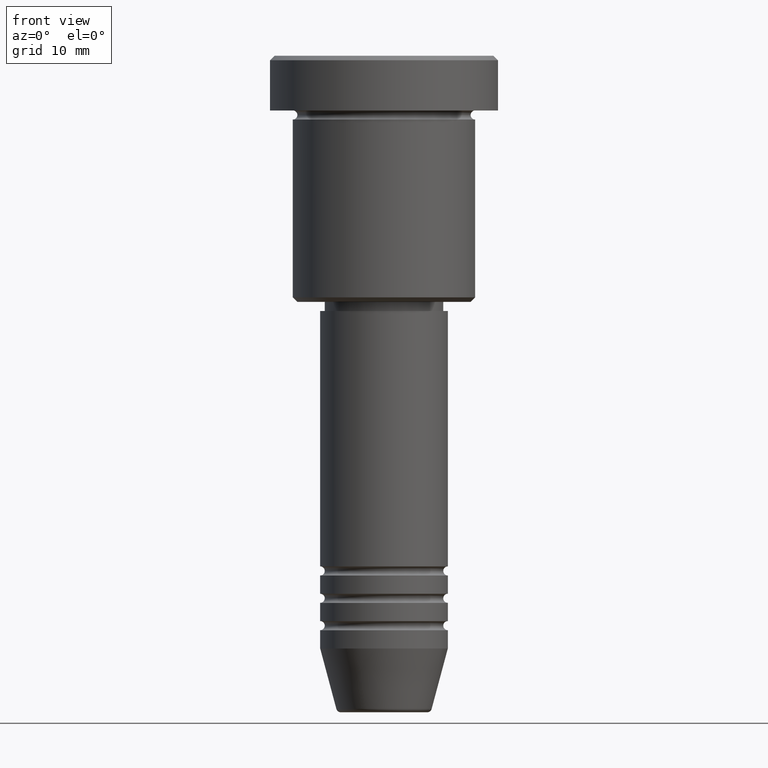
[diagram: clean part render]
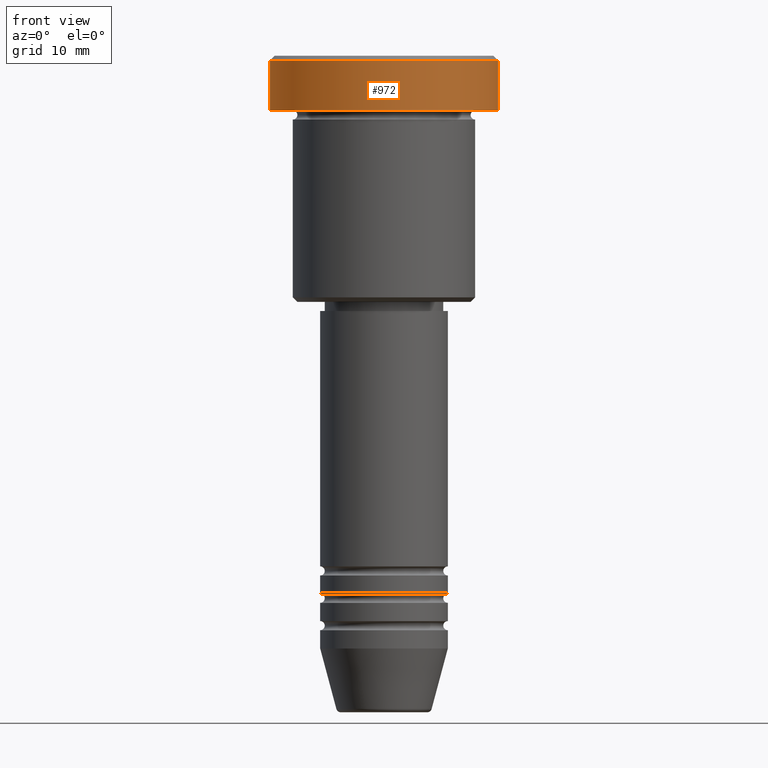
[diagram: same view with one face highlighted and labeled with its STEP entity id]
A machine part, front view. The second image highlights one B-rep face of the part: STEP entity #972.
In plain terms, the highlighted cylindrical surface (partial cylindrical patch) has radius 12.5 mm, axis along (-0, -0, 1).
Its self-contained STEP definition (entity closure, byte-faithful):
#7 = VERTEX_POINT ( 'NONE', #427 ) ;
#23 = LINE ( 'NONE', #390, #812 ) ;
#25 = EDGE_CURVE ( 'NONE', #951, #107, #807, .T. ) ;
#107 = VERTEX_POINT ( 'NONE', #1046 ) ;
#195 = VERTEX_POINT ( 'NONE', #323 ) ;
#257 = CARTESIAN_POINT ( 'NONE',  ( 0.000000000000000000, 0.000000000000000000, -0.5000000000000056621 ) ) ;
#267 = DIRECTION ( 'NONE',  ( -0.000000000000000000, -0.000000000000000000, 1.000000000000000000 ) ) ;
#269 = ORIENTED_EDGE ( 'NONE', *, *, #593, .T. ) ;
#323 = CARTESIAN_POINT ( 'NONE',  ( 12.50000000000000000, 0.000000000000000000, -0.5000000000000056621 ) ) ;
#387 = AXIS2_PLACEMENT_3D ( 'NONE', #723, #267, #619 ) ;
#390 = CARTESIAN_POINT ( 'NONE',  ( 12.50000000000000000, 0.000000000000000000, 0.000000000000000000 ) ) ;
#413 = FACE_OUTER_BOUND ( 'NONE', #456, .T. ) ;
#427 = CARTESIAN_POINT ( 'NONE',  ( 12.50000000000000000, 0.000000000000000000, -5.999999999999996447 ) ) ;
#447 = DIRECTION ( 'NONE',  ( -0.000000000000000000, -0.000000000000000000, 1.000000000000000000 ) ) ;
#456 = EDGE_LOOP ( 'NONE', ( #617, #477, #610, #269 ) ) ;
#477 = ORIENTED_EDGE ( 'NONE', *, *, #1167, .T. ) ;
#590 = CARTESIAN_POINT ( 'NONE',  ( -12.50000000000000000, 1.530808498934191521E-15, -5.999999999999996447 ) ) ;
#593 = EDGE_CURVE ( 'NONE', #195, #107, #1057, .T. ) ;
#610 = ORIENTED_EDGE ( 'NONE', *, *, #857, .T. ) ;
#617 = ORIENTED_EDGE ( 'NONE', *, *, #25, .F. ) ;
#619 = DIRECTION ( 'NONE',  ( 1.000000000000000000, 0.000000000000000000, 0.000000000000000000 ) ) ;
#717 = DIRECTION ( 'NONE',  ( 0.000000000000000000, 0.000000000000000000, -1.000000000000000000 ) ) ;
#723 = CARTESIAN_POINT ( 'NONE',  ( 0.000000000000000000, 0.000000000000000000, -5.999999999999996447 ) ) ;
#759 = DIRECTION ( 'NONE',  ( -0.000000000000000000, -0.000000000000000000, 1.000000000000000000 ) ) ;
#807 = LINE ( 'NONE', #900, #1069 ) ;
#812 = VECTOR ( 'NONE', #759, 1000.000000000000000 ) ;
#857 = EDGE_CURVE ( 'NONE', #7, #195, #23, .T. ) ;
#885 = DIRECTION ( 'NONE',  ( -0.000000000000000000, -0.000000000000000000, 1.000000000000000000 ) ) ;
#898 = DIRECTION ( 'NONE',  ( 1.000000000000000000, 0.000000000000000000, 0.000000000000000000 ) ) ;
#900 = CARTESIAN_POINT ( 'NONE',  ( -12.50000000000000000, 1.530808498934191521E-15, 0.000000000000000000 ) ) ;
#912 = CIRCLE ( 'NONE', #387, 12.50000000000000000 ) ;
#949 = AXIS2_PLACEMENT_3D ( 'NONE', #1153, #885, #898 ) ;
#951 = VERTEX_POINT ( 'NONE', #590 ) ;
#972 = ADVANCED_FACE ( 'NONE', ( #413 ), #1066, .T. ) ;
#1046 = CARTESIAN_POINT ( 'NONE',  ( -12.50000000000000000, 1.530808498934191521E-15, -0.5000000000000056621 ) ) ;
#1057 = CIRCLE ( 'NONE', #1145, 12.50000000000000000 ) ;
#1066 = CYLINDRICAL_SURFACE ( 'NONE', #949, 12.50000000000000000 ) ;
#1069 = VECTOR ( 'NONE', #447, 1000.000000000000000 ) ;
#1111 = DIRECTION ( 'NONE',  ( 1.000000000000000000, 0.000000000000000000, 0.000000000000000000 ) ) ;
#1145 = AXIS2_PLACEMENT_3D ( 'NONE', #257, #717, #1111 ) ;
#1153 = CARTESIAN_POINT ( 'NONE',  ( 0.000000000000000000, 0.000000000000000000, 0.000000000000000000 ) ) ;
#1167 = EDGE_CURVE ( 'NONE', #951, #7, #912, .T. ) ;